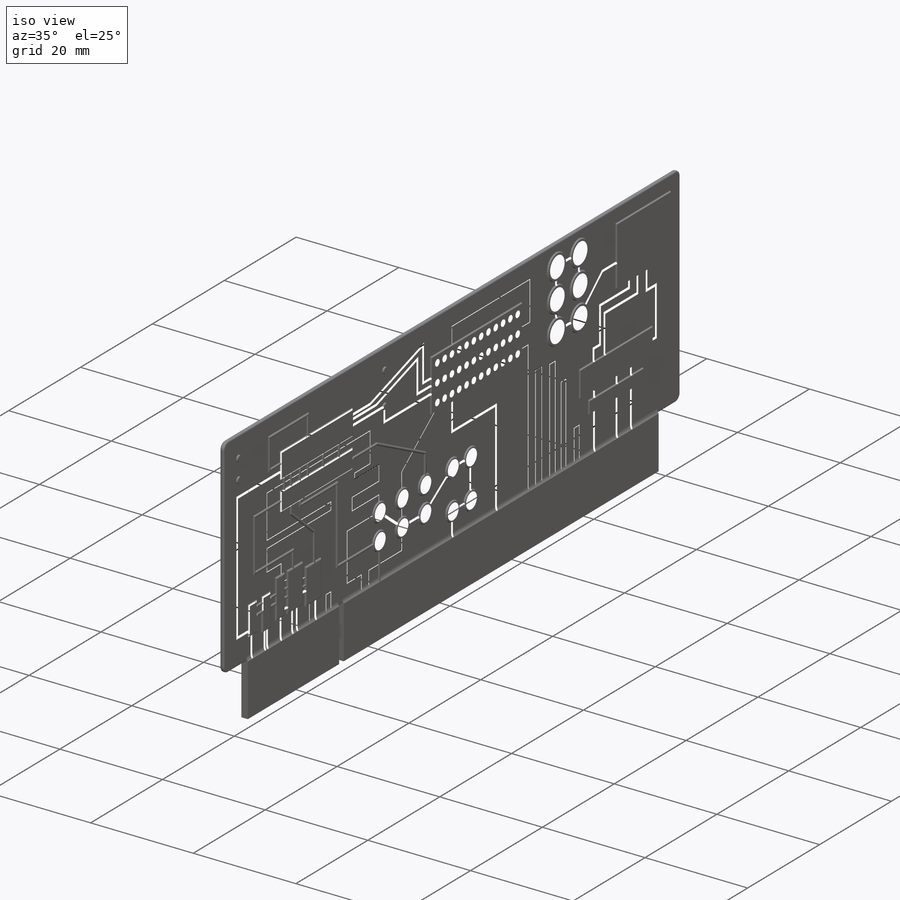
[diagram: iso view]
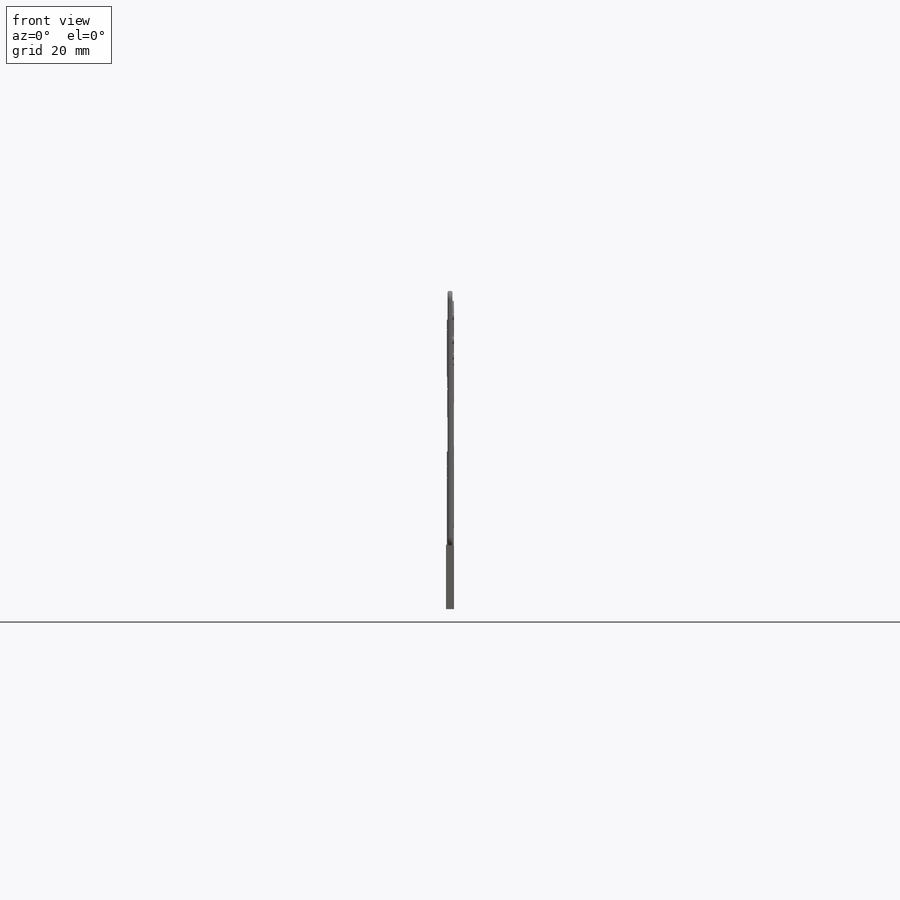
[diagram: front view]
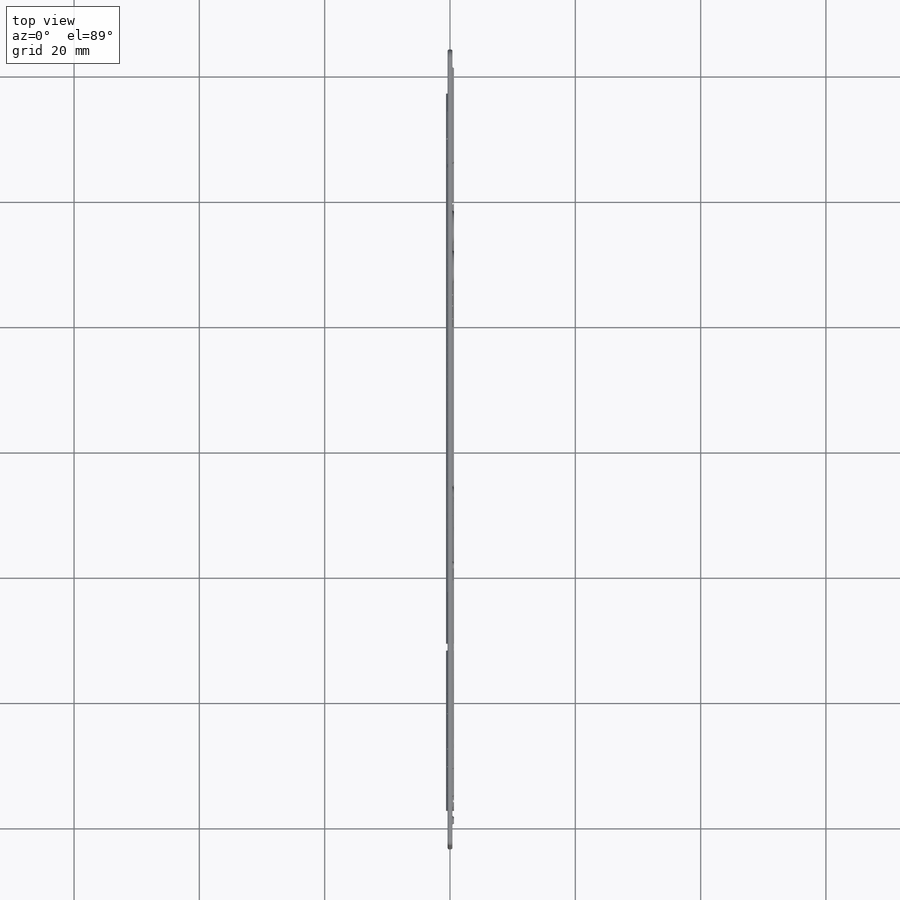
[diagram: top view]
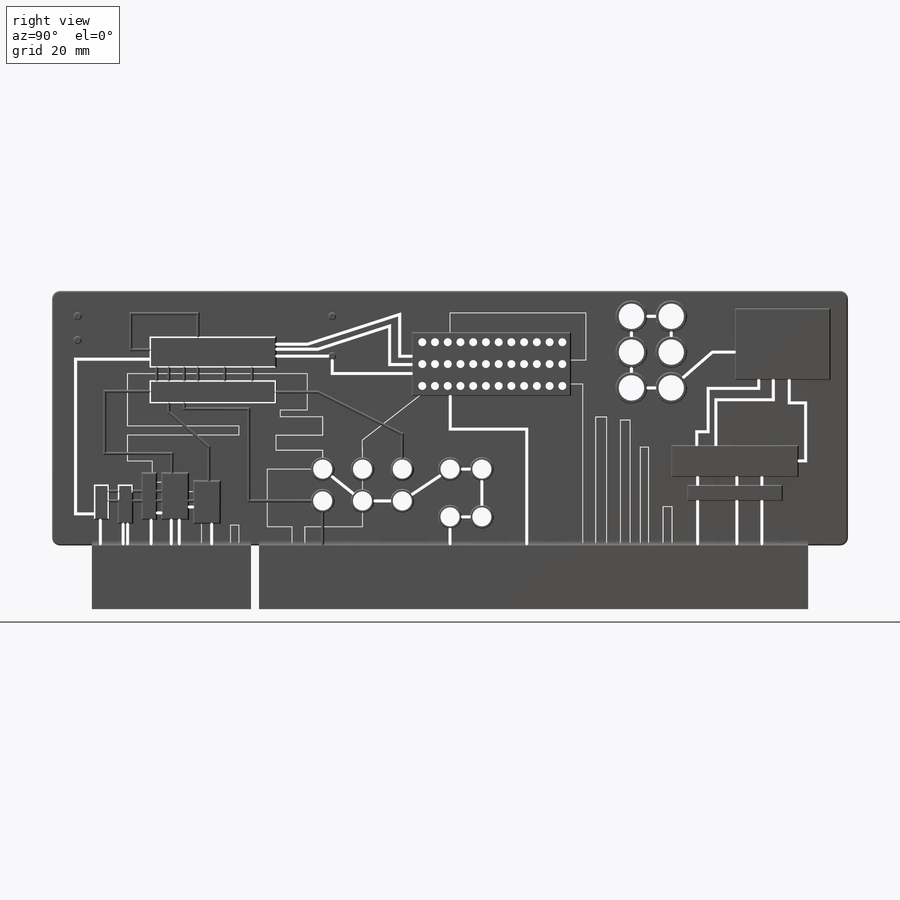
[diagram: right view]
SOLIDWORKS PART (.sldprt)
format: sldprt  version: not decoded by parser v0  size: 2,920,960 bytes
history: native  units: mm
features: sketch x23, plane x8, sweep x8, fillet x7, extrude x6, material x1, cut_extrude x1 (+13 scaffold rows collapsed)
feature tree (67):
  scaffold x13  (default folders/planes/origin — collapsed)
  material  "Material <not specified>"
  sketch  "Sketch1"  dims[D1=1.27mm D2=127.0mm]
  extrude  "Boss-Extrude1"  Depth=40.64mm
  fillet  "Fillet1"  Radius=1.27mm
  sketch  "Sketch2"  dims[D1=114.3mm D2=1.27mm D3=57.15mm D4=25.4mm]
  extrude  "Boss-Extrude2"  Depth=10.16mm
  sketch  "Sketch3"  dims[D1=0.254mm]
  cut_extrude  "Cut-Extrude1"  [1 undecoded]
  fillet  "Fillet2"  Radius=1.27mm
  fillet  "Fillet3"  Radius=1.27mm
  fillet  "Fillet4"  Radius=0.254mm
  sketch  "Sketch4"  dims[c1.D1=1.27mm c1.D31=3.81mm c1.D45=5.08mm c1.D2=3.81mm c1.D3=3.81mm c1.D4=3.81mm c1.D5=40.64mm c1.D6=6.35mm c1.D7=6.35mm c1.D8=5.08mm c1.D9=3.81mm c1.D10=1.905mm c1.D11=20.32mm c1.D12=11.43mm c1.D13=20.32mm c1.D14=6.35mm c1.D15=2.54mm c1.D16=1.27mm c1.D17=1.27mm c1.D18=7.62mm c1.D19=5.715mm c1.D20=6.35mm c1.D21=3.81mm c1.D22=4.445mm c1.D23=0.635mm c1.D24=0.635mm c1.D25=6.35mm c1.D26=6.35mm c1.D27=7.62mm c1.D28=5.08mm c1.D29=3.81mm c1.D30=5.08mm c1.D32=7.62mm c1.D33=5.08mm c2.D28=25.4mm c2.D34=6.35mm c2.D35=25.4mm c2.D36=12.7mm c2.D37=10.16mm c2.D38=2.54mm c2.D39=2.54mm c2.D40=11.43mm c2.D41=15.24mm c2.D42=3.81mm c2.D43=10.16mm c2.D44=6.35mm c2.D46=11.43mm c2.D47=6.35mm c2.D48=10.16mm c2.D49=2.54mm c2.D50=5.08mm c2.D51=1.27mm c2.D52=15.24mm c2.D53=20.32mm]
  extrude  "Boss-Extrude3"  Depth=0.254mm
  sketch  "Sketch5"  dims[D1=9.144mm]
  plane  "Plane1"
  sketch  "Sketch6"  dims[D1=0.4826mm]
  sweep  "Sweep1"
  fillet  "Fillet5"  Radius=0.254mm
  sketch  "Sketch7"
  plane  "Plane2"
  sketch  "Sketch8"  dims[D1=0.4826mm]
  sweep  "Sweep2"
  plane  "Plane3"
  sketch  "Sketch9"  dims[D1=0.4826mm]
  sweep  "Sweep3"
  sketch  "Sketch7<3>"
  plane  "Plane4"
  sketch  "Sketch10"  dims[D1=0.4826mm]
  sweep  "Sweep4"
  sketch  "Sketch7<4>"
  sketch  "Sketch11"
  plane  "Plane5"
  sketch  "Sketch12"  dims[D1=0.127mm]
  sweep  "Sweep5"
  sketch  "Sketch13"  dims[D1=4.064mm D2=3.048mm]
  extrude  "Boss-Extrude4"  Depth=2.54mm
  fillet  "Fillet6"  Radius=0.508mm
  sketch  "Sketch14"  dims[D2=1.27mm D1=6.985mm D3=1.524mm D5=22.352mm D4=12.0]
  extrude  "Boss-Extrude5"  Depth=0.254mm
  fillet  "Fillet7"  Radius=0.127mm
  sketch  "Sketch15"  dims[D1=0.381mm]
  extrude  "Boss-Extrude6"  Depth=0.2032mm
  sketch  "Sketch16"
  plane  "Plane6"
  sketch  "Sketch17"  dims[D1=0.127mm]
  sweep  "Sweep6"
  sketch  "Sketch18"  dims[D1=1.27mm D2=8.89mm D3=2.032mm D4=5.08mm D5=3.81mm D6=1.27mm D7=19.0]
  plane  "Plane7"
  sketch  "Sketch19"  dims[D1=0.254mm]
  sweep  "Sweep7"
  sketch  "Sketch20"  dims[D1=11.43mm D2=12.7mm D3=1.27mm D4=2.032mm D5=0.635mm D6=9.0]
  plane  "Plane8"
  sketch  "Sketch21"  dims[D1=0.127mm]
  sweep  "Sweep8"
decode coverage: 31 of 45 modeling features carry decoded parameters
note: 1 parameter value undecoded
summary: profile_refs inferred from adjacent sketches, not decoded
note: suppression state not decoded; provenance and decode notes live in map.json
